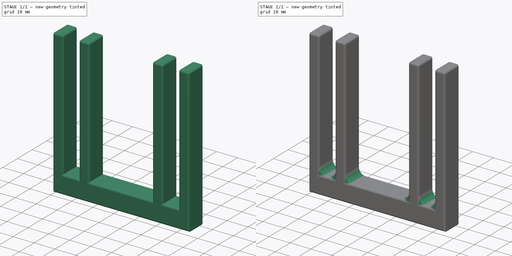
[diagram: build sequence overview — one tinted view per stage of 2, left to right]
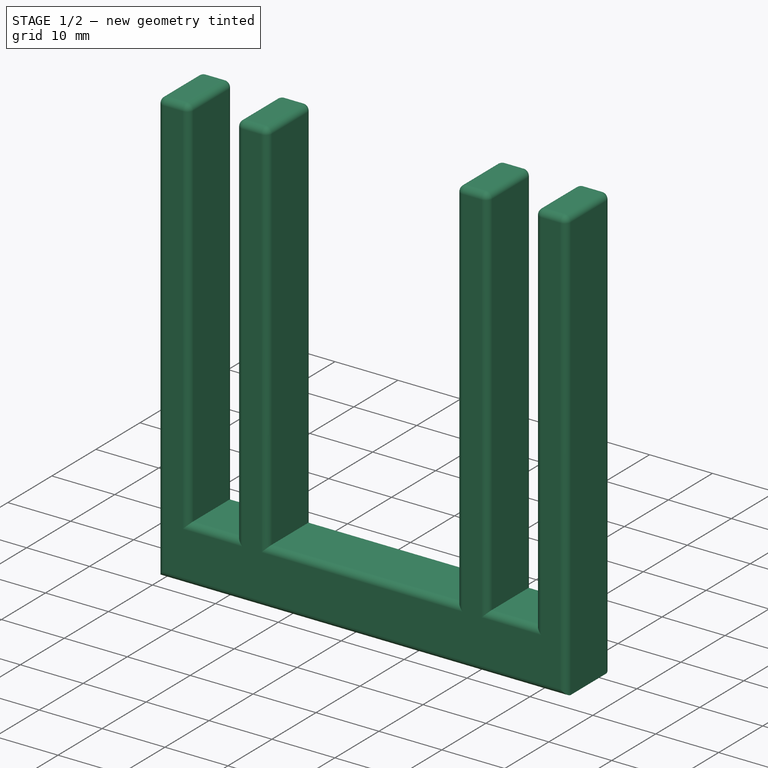
[diagram: stage 1 of 2 — iso view after this stage's code; geometry added in this stage tinted green]
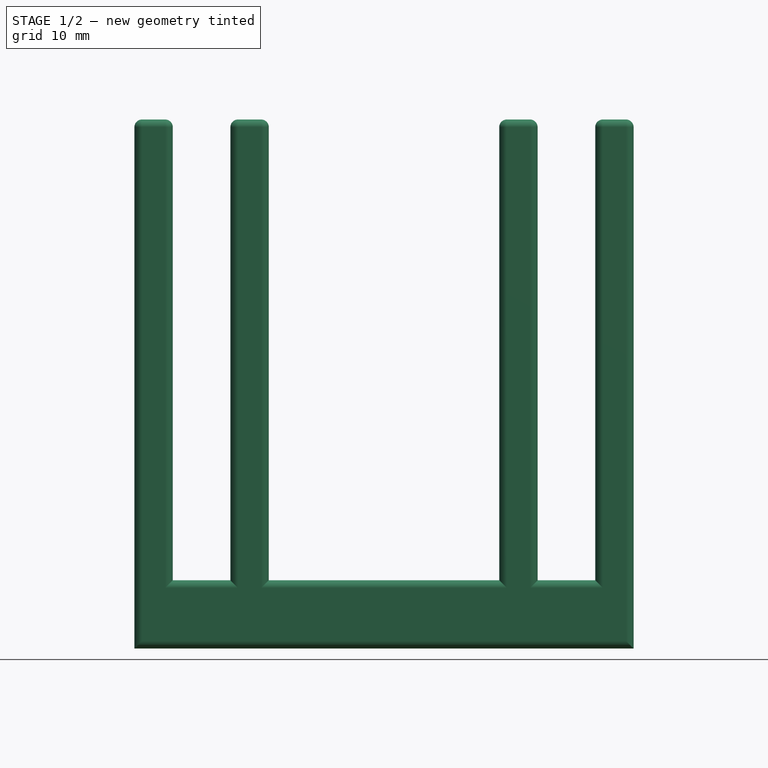
[diagram: stage 1 of 2 — front view after this stage's code; geometry added in this stage tinted green]
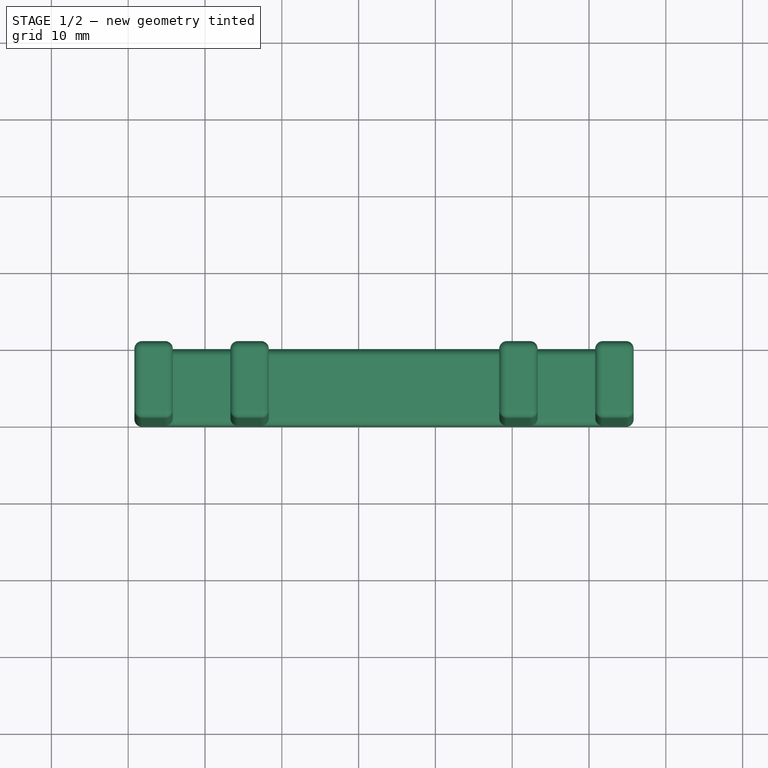
[diagram: stage 1 of 2 — top view after this stage's code; geometry added in this stage tinted green]
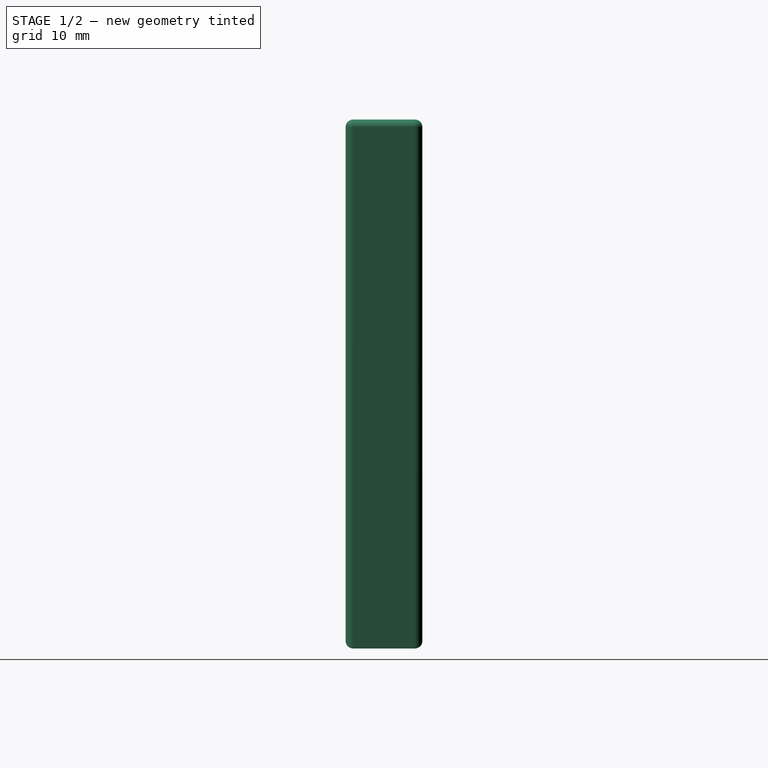
[diagram: stage 1 of 2 — right view after this stage's code; geometry added in this stage tinted green]
FCSTD DOCUMENT  (FreeCAD 0.21R33771 (Git))
Label: roule cable
License: All rights reserved
LicenseURL: https://en.wikipedia.org/wiki/All_rights_reserved
objects: PartDesign::Fillet×2, Sketcher::SketchObject×1, PartDesign::Pad×1, PartDesign::Body×1
note: 8 computed .brp shape members not serialized (recipe doc carries the construction recipe); baked Part::Feature solids carry a one-line shape summary decoded from their .brp

FEATURE [Sketcher::SketchObject] Sketch
  FullyConstrained = false
  MapMode = 5
  Placement = pos=(0,0,0) rot=(1,0,0;1.5708rad)
  Support = -> [XZ_Plane]
  sketch-geometry (16):
    g0: LineSegment StartX=-29.1922 StartY=60 StartZ=0 EndX=-24.1922 EndY=60 EndZ=0
    g1: LineSegment StartX=-24.1922 StartY=60 StartZ=0 EndX=-24.1922 EndY=0 EndZ=0
    g2: LineSegment StartX=-16.6922 StartY=60 StartZ=0 EndX=-11.6922 EndY=60 EndZ=0
    g3: LineSegment StartX=-11.6922 StartY=60 StartZ=0 EndX=-11.6922 EndY=0 EndZ=0
    g4: LineSegment StartX=-16.6922 StartY=0 StartZ=0 EndX=-16.6922 EndY=60 EndZ=0
    g5: LineSegment StartX=18.3078 StartY=60 StartZ=0 EndX=23.3078 EndY=60 EndZ=0
    g6: LineSegment StartX=23.3078 StartY=60 StartZ=0 EndX=23.3078 EndY=0 EndZ=0
    g7: LineSegment StartX=18.3078 StartY=0 StartZ=0 EndX=18.3078 EndY=60 EndZ=0
    g8: LineSegment StartX=30.8078 StartY=60 StartZ=0 EndX=35.8078 EndY=60 EndZ=0
    g9: LineSegment StartX=30.8078 StartY=0 StartZ=0 EndX=30.8078 EndY=60 EndZ=0
    g10: LineSegment StartX=-24.1922 StartY=0 StartZ=0 EndX=-16.6922 EndY=0 EndZ=0
    g11: LineSegment StartX=-29.1922 StartY=-8.88138 StartZ=0 EndX=35.8078 EndY=-8.88138 EndZ=0
    g12: LineSegment StartX=30.8078 StartY=0 StartZ=0 EndX=23.3078 EndY=0 EndZ=0
    g13: LineSegment StartX=18.3078 StartY=0 StartZ=0 EndX=-11.6922 EndY=0 EndZ=0
    g14: LineSegment StartX=-29.1922 StartY=60 StartZ=0 EndX=-29.1922 EndY=-8.88138 EndZ=0
    g15: LineSegment StartX=35.8078 StartY=-8.88138 StartZ=0 EndX=35.8078 EndY=60 EndZ=0
  constraints (46):
    c: Coincident(g0,g1)
    c: Horizontal(g0)
    c: Vertical(g1)
    c: PointOnObject(g1,g-1)
    c: Coincident(g2,g3)
    c: Coincident(g4,g2)
    c: Horizontal(g2)
    c: Vertical(g3)
    c: Vertical(g4)
    c: PointOnObject(g3,g-1)
    c: Coincident(g5,g6)
    c: Coincident(g7,g5)
    c: Horizontal(g5)
    c: Vertical(g6)
    c: Vertical(g7)
    c: PointOnObject(g6,g-1)
    c: Coincident(g9,g8)
    c: Horizontal(g8)
    c: Vertical(g9)
    c: Coincident(g10,g1)
    c: Horizontal(g10)
    c: Horizontal(g11)
    c: Coincident(g12,g6)
    c: Horizontal(g12)
    c: Coincident(g13,g3)
    c: Horizontal(g13)
    c: Distance(g12) = 7.5
    c: Distance(g5) = 5
    c: Distance(g8) = 5
    c: Distance(g2) = 5
    c: Distance(g0) = 5
    c: Coincident(g9,g12)
    c: Coincident(g14,g0)
    c: Coincident(g14,g11)
    c: Vertical(g14)
    c: Coincident(g15,g11)
    c: Coincident(g15,g8)
    c: Vertical(g15)
    c: Coincident(g4,g10)
    c: Coincident(g7,g13)
    c: Distance(g13) = 30
    c: Equal(g10,g12)
    c: Equal(g1,g4)
    c: Equal(g3,g7)
    c: Equal(g6,g9)
    c: Distance(g1) = 60
FEATURE [PartDesign::Pad] Pad
  Direction = (0,-1,2e-16)
  Length = 10
  Length2 = 10
  Placement = pos=(0,0,0) rot=(1,0,0;1.5708rad)
  Profile = -> Sketch
  ReferenceAxis = -> Sketch [N_Axis]
  Type = 0
FEATURE [PartDesign::Fillet] Fillet
  Base = -> Pad [Face18,Face17,Face5,Face9,Face13,Face1]
  BaseFeature = -> Pad
  Placement = pos=(0,0,0) rot=(1,0,0;1.5708rad)
  Radius = 1
  SupportTransform = false
  UseAllEdges = false
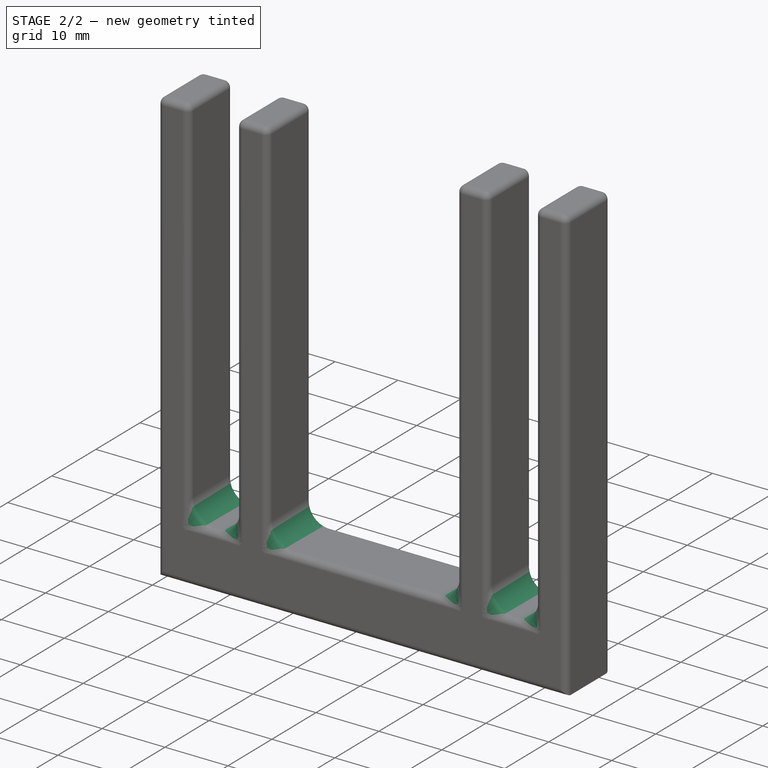
[diagram: stage 2 of 2 — iso view after this stage's code; geometry added in this stage tinted green]
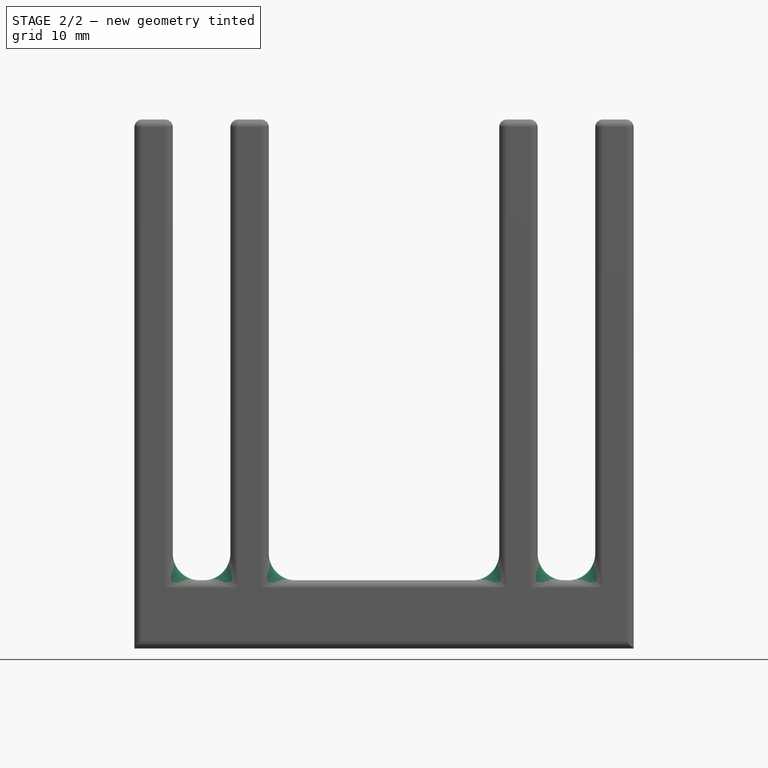
[diagram: stage 2 of 2 — front view after this stage's code; geometry added in this stage tinted green]
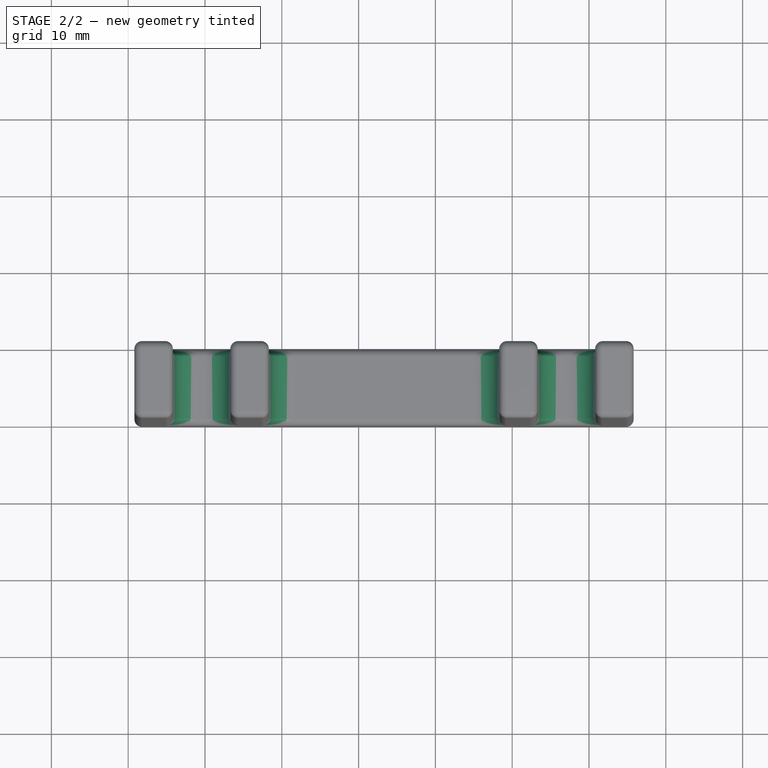
[diagram: stage 2 of 2 — top view after this stage's code; geometry added in this stage tinted green]
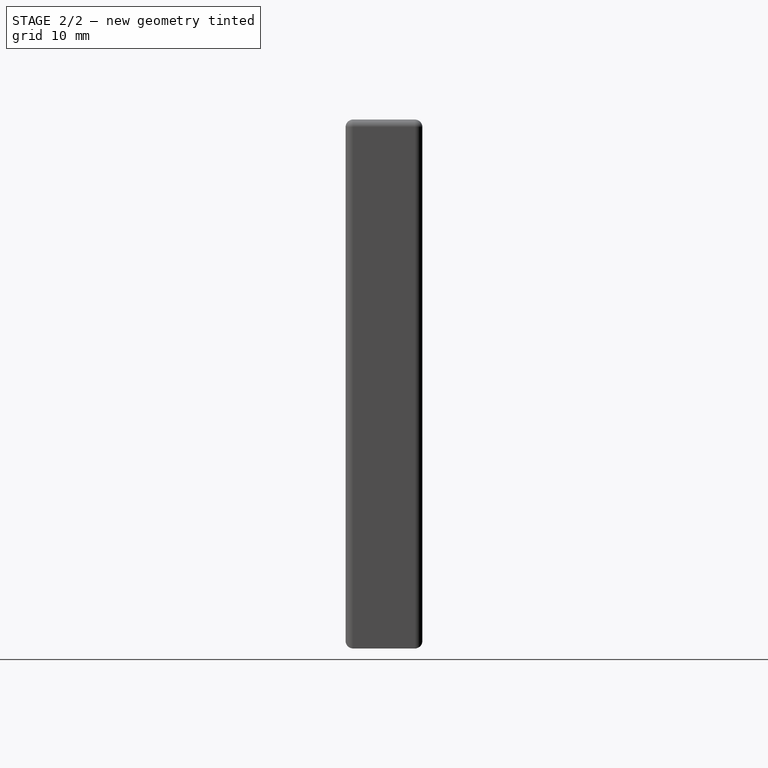
[diagram: stage 2 of 2 — right view after this stage's code; geometry added in this stage tinted green]
FEATURE [PartDesign::Fillet] Fillet001
  Base = -> Fillet [Face32,Face57,Face56]
  BaseFeature = -> Fillet
  Placement = pos=(0,0,0) rot=(1,0,0;1.5708rad)
  Radius = 3.5
  SupportTransform = false
  UseAllEdges = false
FEATURE [PartDesign::Body] Body  label="Corps"
  Group = -> [Sketch,Pad,Fillet,Fillet001]
  Origin = -> Origin
  Tip = -> Fillet001
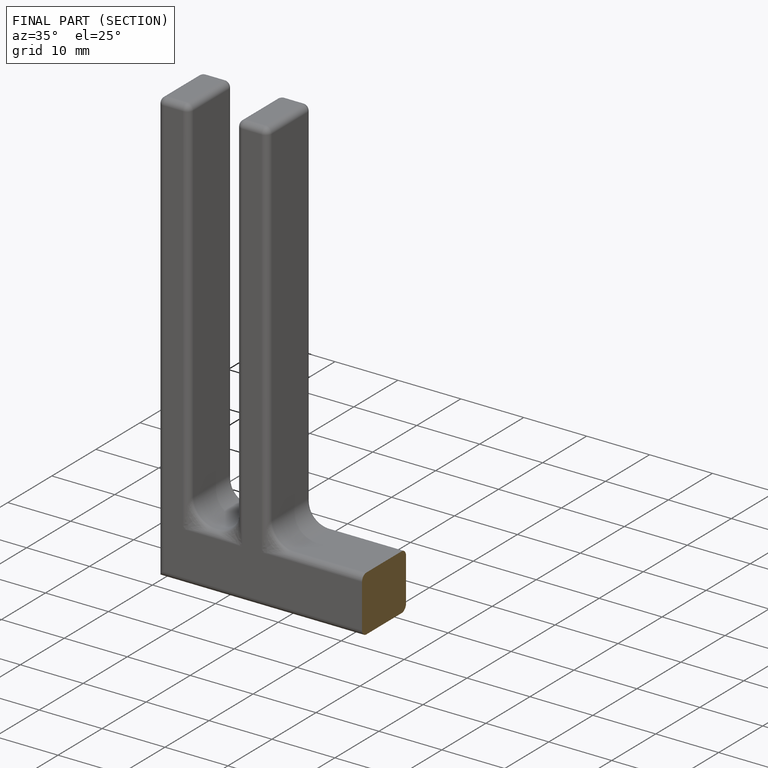
[diagram: finished part — half-section view (interior)]
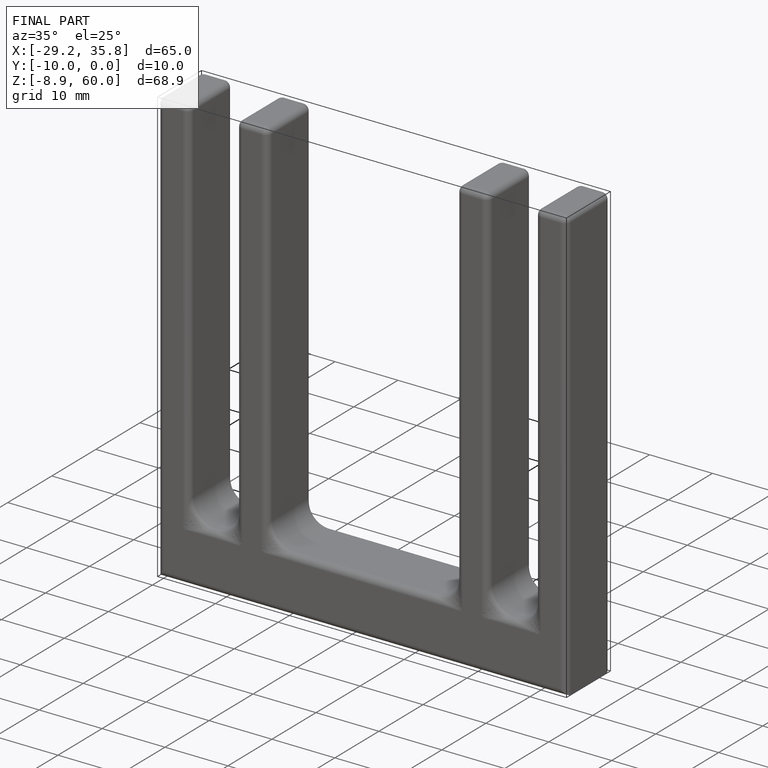
[diagram: finished part — iso view with bounding-box wireframe]
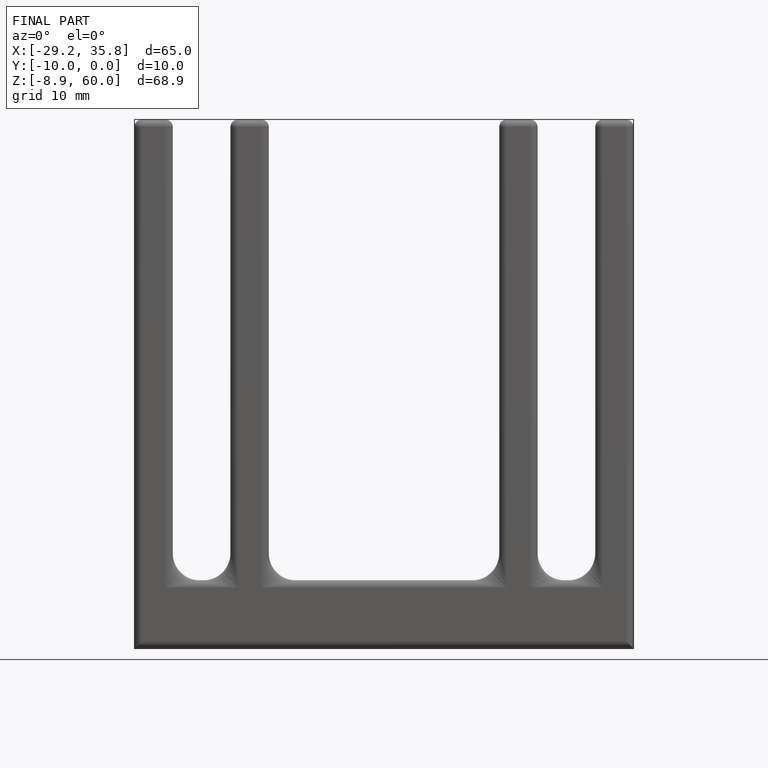
[diagram: finished part — front view with bounding-box wireframe]
